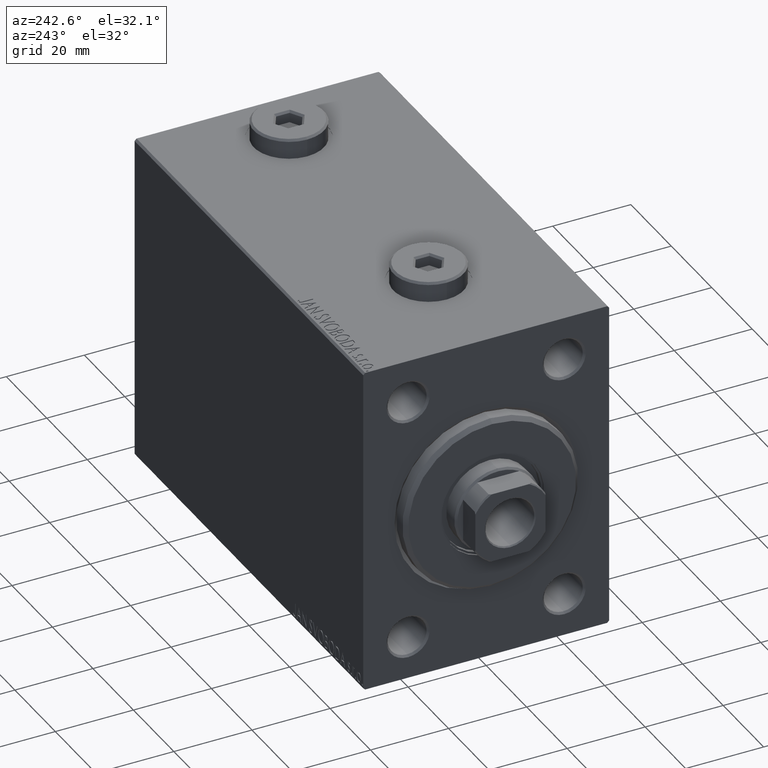
[diagram: clean part render]
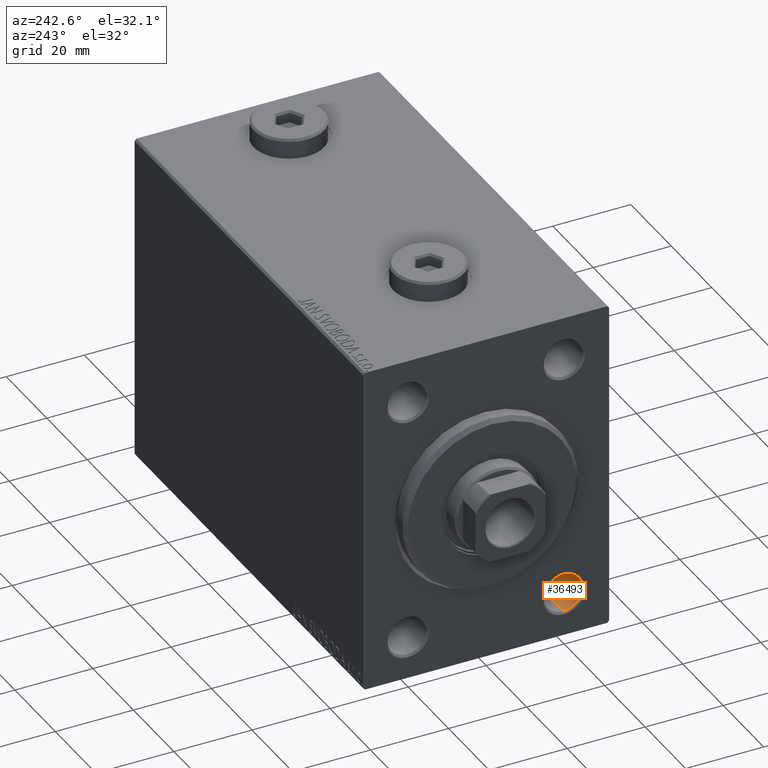
[diagram: same view with one face highlighted and labeled with its STEP entity id]
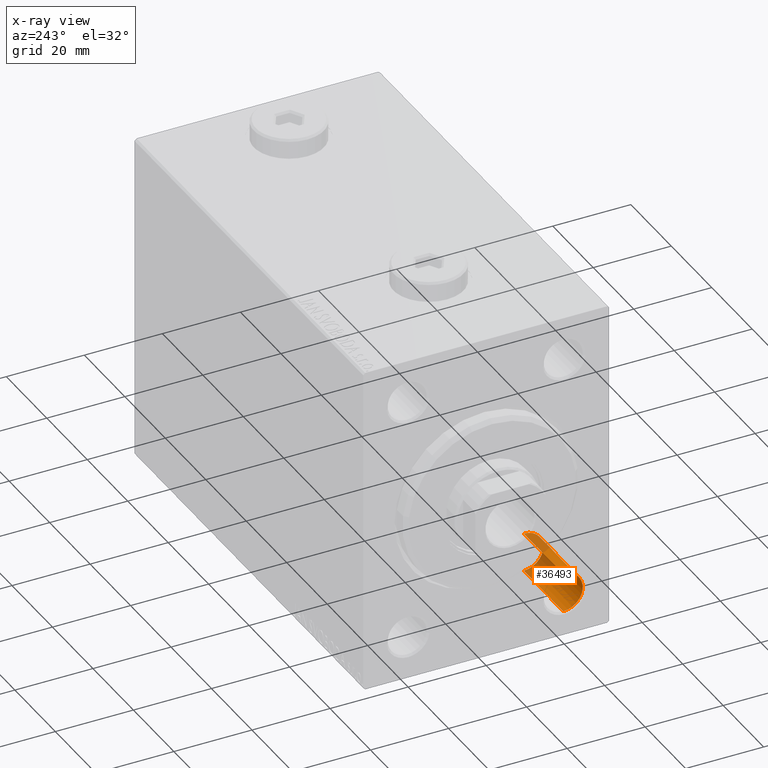
[diagram: x-ray of the same camera — body ghosted, the highlighted face saturated]
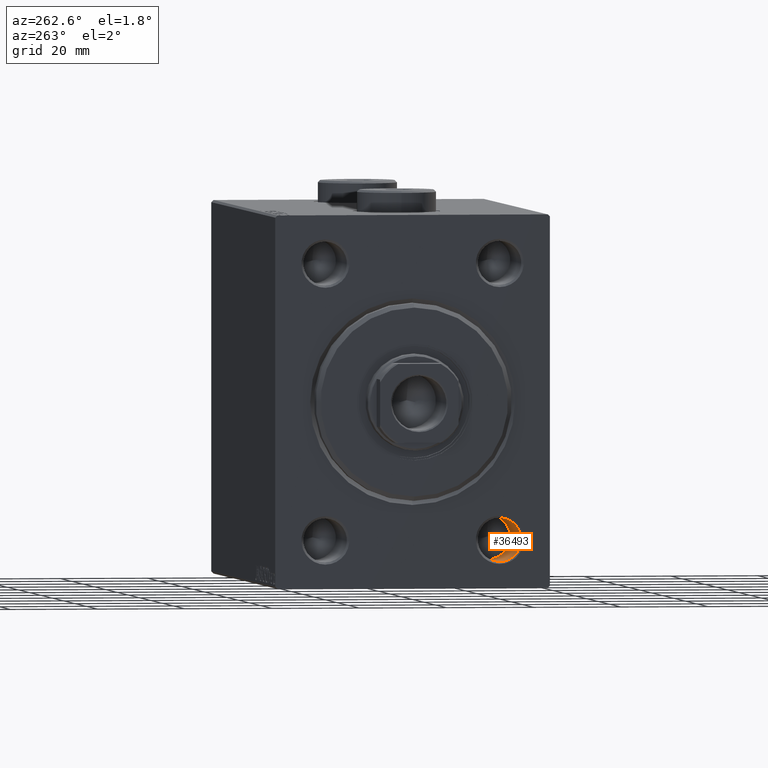
[diagram: same view with one face highlighted and labeled with its STEP entity id]
A machine part, auxiliary view. The second image highlights one B-rep face of the part: STEP entity #36493.
The next image is the same camera in x-ray: the body ghosted, the highlighted face saturated — about 33% of this face is hidden behind the body in this view.
A second angle (auxiliary view) of the same face is appended — the face is thin or edge-on in the first view.
In plain terms, the highlighted cylindrical surface (edge-blend (fillet) strip) has radius 5 mm, axis along (-1, -0, -0).
Its self-contained STEP definition (entity closure, byte-faithful):
#745 = CARTESIAN_POINT ( 'NONE',  ( 0.000000000000000000, -20.00000000000000355, -36.50000000000000000 ) ) ;
#1082 = EDGE_CURVE ( 'NONE', #7458, #10227, #6953, .T. ) ;
#1325 = VERTEX_POINT ( 'NONE', #20467 ) ;
#2833 = EDGE_CURVE ( 'NONE', #12432, #1325, #29054, .T. ) ;
#5271 = ORIENTED_EDGE ( 'NONE', *, *, #42737, .T. ) ;
#6494 = DIRECTION ( 'NONE',  ( -1.000000000000000000, -0.000000000000000000, -0.000000000000000000 ) ) ;
#6953 = LINE ( 'NONE', #745, #6979 ) ;
#6979 = VECTOR ( 'NONE', #14119, 1000.000000000000000 ) ;
#7458 = VERTEX_POINT ( 'NONE', #20090 ) ;
#7658 = DIRECTION ( 'NONE',  ( 0.000000000000000000, 0.000000000000000000, 1.000000000000000000 ) ) ;
#7869 = CARTESIAN_POINT ( 'NONE',  ( 20.00000000000000000, -20.00000000000000355, -26.50000000000000355 ) ) ;
#8383 = VECTOR ( 'NONE', #39642, 1000.000000000000000 ) ;
#8901 = EDGE_CURVE ( 'NONE', #7458, #12432, #43154, .T. ) ;
#9426 = CARTESIAN_POINT ( 'NONE',  ( 0.4999999999999692468, -20.00000000000000355, -31.50000000000000000 ) ) ;
#9643 = CARTESIAN_POINT ( 'NONE',  ( 0.4999999999999692468, -20.00000000000000355, -36.50000000000000000 ) ) ;
#10227 = VERTEX_POINT ( 'NONE', #9643 ) ;
#12432 = VERTEX_POINT ( 'NONE', #7869 ) ;
#14119 = DIRECTION ( 'NONE',  ( -1.000000000000000000, -0.000000000000000000, -0.000000000000000000 ) ) ;
#16143 = DIRECTION ( 'NONE',  ( -1.000000000000000000, 0.000000000000000000, 0.000000000000000000 ) ) ;
#16323 = EDGE_LOOP ( 'NONE', ( #31611, #30165, #5271, #25362 ) ) ;
#18724 = CARTESIAN_POINT ( 'NONE',  ( 20.00000000000000000, -20.00000000000000355, -31.50000000000000000 ) ) ;
#20090 = CARTESIAN_POINT ( 'NONE',  ( 20.00000000000000000, -20.00000000000000355, -36.50000000000000000 ) ) ;
#20345 = CYLINDRICAL_SURFACE ( 'NONE', #41104, 4.999999999999997335 ) ;
#20467 = CARTESIAN_POINT ( 'NONE',  ( 0.4999999999999692468, -20.00000000000000355, -26.50000000000000355 ) ) ;
#21440 = AXIS2_PLACEMENT_3D ( 'NONE', #9426, #16143, #23289 ) ;
#23289 = DIRECTION ( 'NONE',  ( 0.000000000000000000, 0.000000000000000000, -1.000000000000000000 ) ) ;
#25362 = ORIENTED_EDGE ( 'NONE', *, *, #2833, .F. ) ;
#29054 = LINE ( 'NONE', #32728, #8383 ) ;
#30165 = ORIENTED_EDGE ( 'NONE', *, *, #1082, .T. ) ;
#30953 = CARTESIAN_POINT ( 'NONE',  ( 0.000000000000000000, -20.00000000000000355, -31.50000000000000000 ) ) ;
#31611 = ORIENTED_EDGE ( 'NONE', *, *, #8901, .F. ) ;
#32118 = AXIS2_PLACEMENT_3D ( 'NONE', #18724, #36487, #7658 ) ;
#32728 = CARTESIAN_POINT ( 'NONE',  ( 0.000000000000000000, -20.00000000000000355, -26.50000000000000355 ) ) ;
#36487 = DIRECTION ( 'NONE',  ( -1.000000000000000000, -0.000000000000000000, -0.000000000000000000 ) ) ;
#36493 = ADVANCED_FACE ( 'NONE', ( #41541 ), #20345, .F. ) ;
#39642 = DIRECTION ( 'NONE',  ( -1.000000000000000000, -0.000000000000000000, -0.000000000000000000 ) ) ;
#41104 = AXIS2_PLACEMENT_3D ( 'NONE', #30953, #6494, #42224 ) ;
#41541 = FACE_OUTER_BOUND ( 'NONE', #16323, .T. ) ;
#42027 = CIRCLE ( 'NONE', #21440, 4.999999999999997335 ) ;
#42224 = DIRECTION ( 'NONE',  ( 0.000000000000000000, 0.000000000000000000, 1.000000000000000000 ) ) ;
#42737 = EDGE_CURVE ( 'NONE', #10227, #1325, #42027, .T. ) ;
#43154 = CIRCLE ( 'NONE', #32118, 4.999999999999997335 ) ;